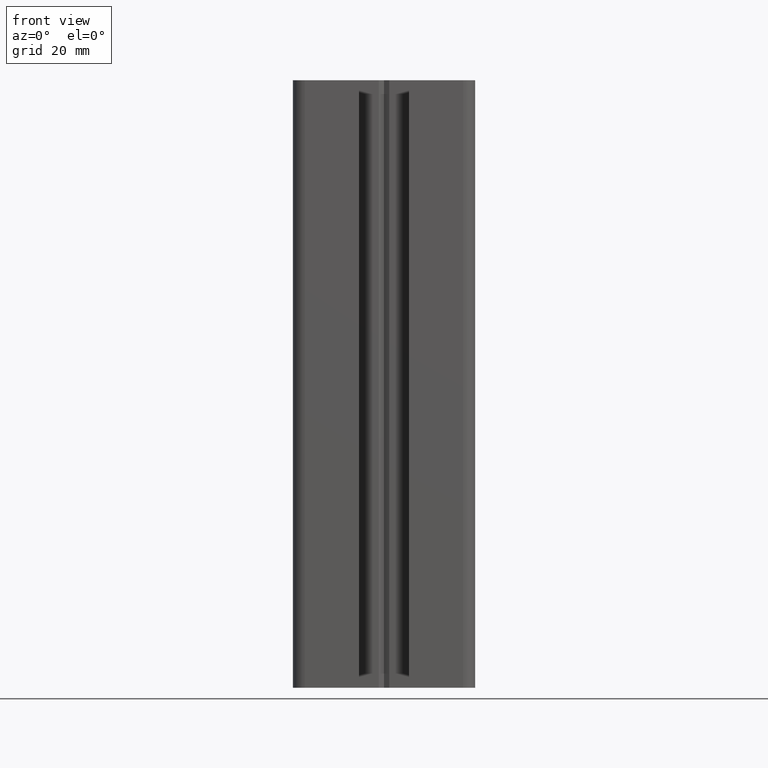
[diagram: clean part render]
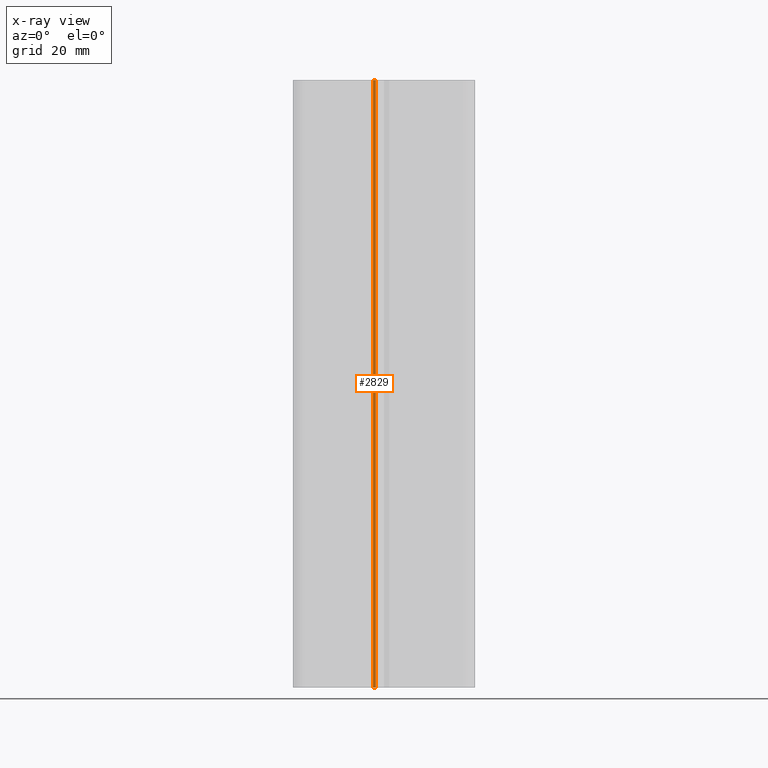
[diagram: x-ray — body ghosted, one internal face saturated and labeled with its STEP entity id]
A machine part, front view, then the same camera in x-ray: the body is ghosted and one INTERNAL B-rep face — a face not visible from any outside direction — is saturated and labeled: STEP entity #2829.
In plain terms, the highlighted cylindrical surface (edge-blend (fillet) strip) has radius 0.5 mm, axis along (-0, -0, -1).
Its self-contained STEP definition (entity closure, byte-faithful):
#926 = VERTEX_POINT ( 'NONE', #4635 ) ;
#930 = EDGE_CURVE ( 'NONE', #964, #926, #4627, .T. ) ;
#964 = VERTEX_POINT ( 'NONE', #4741 ) ;
#1660 = EDGE_CURVE ( 'NONE', #1691, #1697, #5957, .T. ) ;
#1691 = VERTEX_POINT ( 'NONE', #6020 ) ;
#1697 = VERTEX_POINT ( 'NONE', #6044 ) ;
#2772 = EDGE_LOOP ( 'NONE', ( #2827, #2839, #2833, #2776 ) ) ;
#2776 = ORIENTED_EDGE ( 'NONE', *, *, #2832, .T. ) ;
#2826 = EDGE_CURVE ( 'NONE', #964, #1691, #7768, .T. ) ;
#2827 = ORIENTED_EDGE ( 'NONE', *, *, #1660, .F. ) ;
#2829 = ADVANCED_FACE ( 'NONE', ( #7757 ), #7748, .T. ) ;
#2832 = EDGE_CURVE ( 'NONE', #926, #1697, #7793, .T. ) ;
#2833 = ORIENTED_EDGE ( 'NONE', *, *, #930, .T. ) ;
#2839 = ORIENTED_EDGE ( 'NONE', *, *, #2826, .F. ) ;
#4627 = CIRCLE ( 'NONE', #4642, 0.4999999999999995600 ) ;
#4631 = CARTESIAN_POINT ( 'NONE',  ( -1.534348323109700200, 11.14405978578285100, 100.0000000000000000 ) ) ;
#4635 = CARTESIAN_POINT ( 'NONE',  ( -1.349487077817215900, 11.60863089981052300, 100.0000000000000000 ) ) ;
#4642 = AXIS2_PLACEMENT_3D ( 'NONE', #4631, #4679, #4678 ) ;
#4678 = DIRECTION ( 'NONE',  ( 1.000000000000000000, 0.0000000000000000000, 0.0000000000000000000 ) ) ;
#4679 = DIRECTION ( 'NONE',  ( -0.0000000000000000000, -0.0000000000000000000, -1.000000000000000000 ) ) ;
#4741 = CARTESIAN_POINT ( 'NONE',  ( -1.855742138901346000, 11.52708199815556100, 100.0000000000000000 ) ) ;
#5926 = AXIS2_PLACEMENT_3D ( 'NONE', #5946, #5945, #5944 ) ;
#5944 = DIRECTION ( 'NONE',  ( 1.000000000000000000, 0.0000000000000000000, 0.0000000000000000000 ) ) ;
#5945 = DIRECTION ( 'NONE',  ( -0.0000000000000000000, -0.0000000000000000000, -1.000000000000000000 ) ) ;
#5946 = CARTESIAN_POINT ( 'NONE',  ( -1.534348323109700200, 11.14405978578285100, 0.0000000000000000000 ) ) ;
#5957 = CIRCLE ( 'NONE', #5926, 0.4999999999999995600 ) ;
#6020 = CARTESIAN_POINT ( 'NONE',  ( -1.855742138901346000, 11.52708199815556100, 0.0000000000000000000 ) ) ;
#6044 = CARTESIAN_POINT ( 'NONE',  ( -1.349487077817215900, 11.60863089981052300, 0.0000000000000000000 ) ) ;
#7740 = DIRECTION ( 'NONE',  ( -0.0000000000000000000, -0.0000000000000000000, -1.000000000000000000 ) ) ;
#7741 = VECTOR ( 'NONE', #7740, 1000.000000000000000 ) ;
#7742 = CARTESIAN_POINT ( 'NONE',  ( -1.855742138901346000, 11.52708199815556100, 100.0000000000000000 ) ) ;
#7748 = CYLINDRICAL_SURFACE ( 'NONE', #7798, 0.4999999999999995600 ) ;
#7757 = FACE_OUTER_BOUND ( 'NONE', #2772, .T. ) ;
#7768 = LINE ( 'NONE', #7742, #7741 ) ;
#7790 = DIRECTION ( 'NONE',  ( -0.0000000000000000000, -0.0000000000000000000, -1.000000000000000000 ) ) ;
#7791 = VECTOR ( 'NONE', #7790, 1000.000000000000000 ) ;
#7792 = CARTESIAN_POINT ( 'NONE',  ( -1.349487077817215900, 11.60863089981052300, 100.0000000000000000 ) ) ;
#7793 = LINE ( 'NONE', #7792, #7791 ) ;
#7795 = DIRECTION ( 'NONE',  ( -1.000000000000000000, 0.0000000000000000000, 0.0000000000000000000 ) ) ;
#7796 = DIRECTION ( 'NONE',  ( -0.0000000000000000000, -0.0000000000000000000, -1.000000000000000000 ) ) ;
#7797 = CARTESIAN_POINT ( 'NONE',  ( -1.534348323109700200, 11.14405978578285100, 100.0000000000000000 ) ) ;
#7798 = AXIS2_PLACEMENT_3D ( 'NONE', #7797, #7796, #7795 ) ;